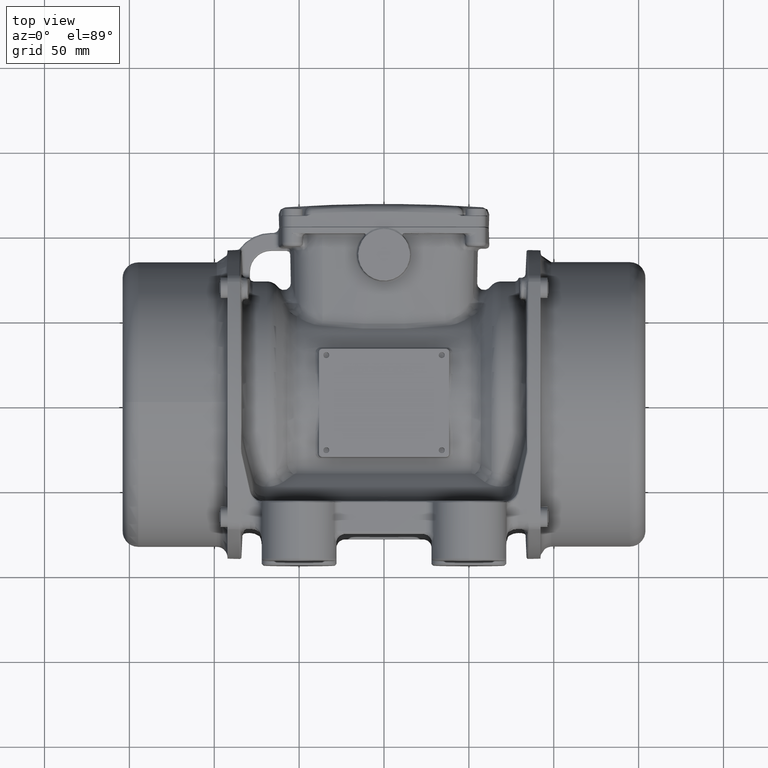
[diagram: clean part render]
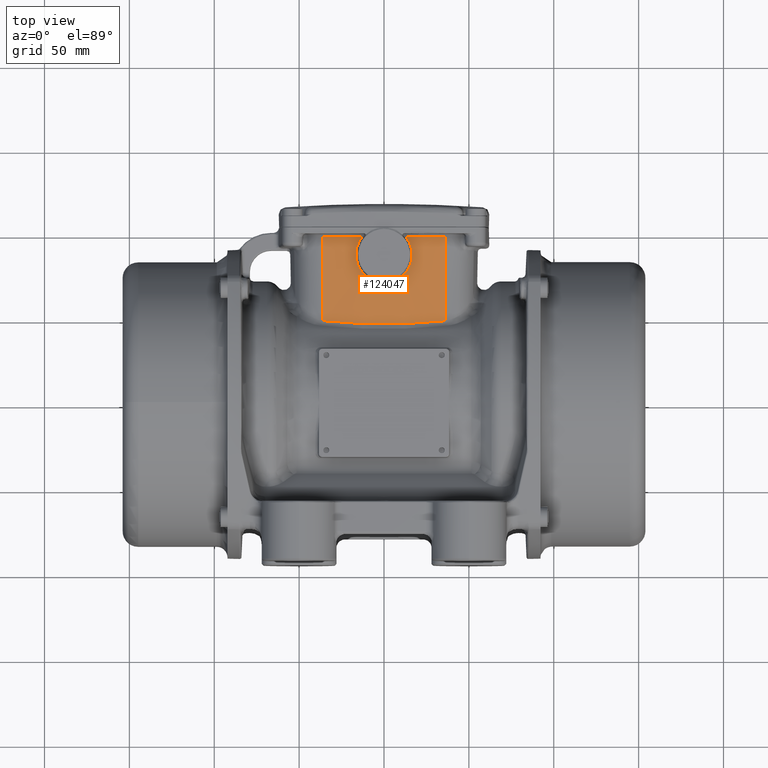
[diagram: same view with one face highlighted and labeled with its STEP entity id]
A machine part, top view. The second image highlights one B-rep face of the part: STEP entity #124047.
In plain terms, the highlighted conical surface has half-angle 1 deg.
Its self-contained STEP definition (entity closure, byte-faithful):
#973 = ORIENTED_EDGE ( 'NONE', *, *, #134168, .T. ) ;
#1358 = EDGE_LOOP ( 'NONE', ( #65695, #13372, #4994, #973, #128288, #126973 ) ) ;
#4195 = CARTESIAN_POINT ( 'NONE',  ( 36.27280846371330400, 98.03490481287460100, 40.76225481131670100 ) ) ;
#4562 = CARTESIAN_POINT ( 'NONE',  ( 10.17472140920524200, 74.38233236715667800, 42.31601640307083300 ) ) ;
#4994 = ORIENTED_EDGE ( 'NONE', *, *, #7613, .T. ) ;
#5027 = CARTESIAN_POINT ( 'NONE',  ( 1.990666772049111100, 71.01820452813392100, 42.41812930920281800 ) ) ;
#5976 = CARTESIAN_POINT ( 'NONE',  ( -2.664499273832317000, 71.11415414070917500, 42.41472458181035400 ) ) ;
#6759 = CIRCLE ( 'NONE', #36603, 309.3958788762055300 ) ;
#7403 = CARTESIAN_POINT ( 'NONE',  ( -12.87623930102094500, 77.05641679390021200, 42.26141914767774200 ) ) ;
#7613 = EDGE_CURVE ( 'NONE', #26697, #20312, #10223, .T. ) ;
#8407 = CARTESIAN_POINT ( 'NONE',  ( -36.27259896250114900, 97.93252875242699000, 40.76048015372775500 ) ) ;
#8787 = CARTESIAN_POINT ( 'NONE',  ( -20.69859936352216000, 97.94742546893651500, 42.22597279158127000 ) ) ;
#8812 = CARTESIAN_POINT ( 'NONE',  ( -15.68240846072335300, 82.15118054903247500, 42.22058824538925800 ) ) ;
#10223 = B_SPLINE_CURVE_WITH_KNOTS ( 'NONE', 3,
 ( #74011, #52998, #8787, #96839, #19722, #18777 ),
 .UNSPECIFIED., .F., .F.,
 ( 4, 2, 4 ),
 ( 0.001439304468505251100, 0.01317641225761324000, 0.02491352004672122900 ),
 .UNSPECIFIED. ) ;
#12890 = CARTESIAN_POINT ( 'NONE',  ( 36.28501536703129900, 104.0000000000000000, 40.86565790571705000 ) ) ;
#13372 = ORIENTED_EDGE ( 'NONE', *, *, #118176, .T. ) ;
#14190 = CARTESIAN_POINT ( 'NONE',  ( -30.14320839779169600, 48.05967872835511700, 40.60748586177390300 ) ) ;
#15520 = CARTESIAN_POINT ( 'NONE',  ( 13.76642390601854300, 96.78282160961099100, 42.56785145749884000 ) ) ;
#15979 = CARTESIAN_POINT ( 'NONE',  ( 1.598583187170027800, 70.97536681722648700, 42.41966293730188700 ) ) ;
#16436 = CARTESIAN_POINT ( 'NONE',  ( 0.4294444741117323100, 70.90350004078851500, 42.42224405712051500 ) ) ;
#17390 = CARTESIAN_POINT ( 'NONE',  ( 16.53381093481408800, 86.43433947494210700, 42.25101108277852500 ) ) ;
#17862 = CARTESIAN_POINT ( 'NONE',  ( -14.66248452286831300, 95.39559429636308600, 42.50272341890868700 ) ) ;
#18643 = VECTOR ( 'NONE', #106301, 1000.000000000000000 ) ;
#18777 = CARTESIAN_POINT ( 'NONE',  ( -36.27259896250114900, 97.93252875242699000, 40.76048015372775500 ) ) ;
#18803 = CARTESIAN_POINT ( 'NONE',  ( -12.88394061335526100, 97.95148341338790500, 42.62604695049385100 ) ) ;
#19280 = CARTESIAN_POINT ( 'NONE',  ( -16.03425196901350300, 83.27190283037323600, 42.22216952541308600 ) ) ;
#19722 = CARTESIAN_POINT ( 'NONE',  ( -32.38707186742143300, 97.93719865656125000, 41.21925502056483700 ) ) ;
#19746 = CARTESIAN_POINT ( 'NONE',  ( -12.62573986826157800, 76.75371432968282200, 42.26649176278686300 ) ) ;
#20312 = VERTEX_POINT ( 'NONE', #8407 ) ;
#22849 = DIRECTION ( 'NONE',  ( -1.598721155460225100E-014, 0.0000000000000000000, 1.000000000000000000 ) ) ;
#26483 = CARTESIAN_POINT ( 'NONE',  ( 14.26737492622961800, 79.03852597148326700, 42.23509963363746100 ) ) ;
#26697 = VERTEX_POINT ( 'NONE', #105858 ) ;
#27419 = CARTESIAN_POINT ( 'NONE',  ( -1.509111262298346000, 70.95319081917310200, 42.42044001745156800 ) ) ;
#30261 = CARTESIAN_POINT ( 'NONE',  ( -15.55108882851473200, 81.77948559905223600, 42.22074571680529700 ) ) ;
#35275 = DIRECTION ( 'NONE',  ( -0.002046077013791670400, -0.9998476951563912700, -0.01733205294550445300 ) ) ;
#36598 = CARTESIAN_POINT ( 'NONE',  ( 24.11456671823341200, 47.55507318326035500, 41.13014216939625100 ) ) ;
#36603 = AXIS2_PLACEMENT_3D ( 'NONE', #130514, #43831, #22849 ) ;
#37538 = CARTESIAN_POINT ( 'NONE',  ( 30.14320839779175300, 48.05967872835513100, 40.60748586177390300 ) ) ;
#37924 = CARTESIAN_POINT ( 'NONE',  ( 16.18378525081699900, 91.07293105659525200, 42.35064146313740700 ) ) ;
#38403 = CARTESIAN_POINT ( 'NONE',  ( 16.53519702347733000, 88.76387281702101000, 42.29167004247612700 ) ) ;
#39332 = CARTESIAN_POINT ( 'NONE',  ( 16.41612974737394000, 85.26291398785991800, 42.23681853330489100 ) ) ;
#39797 = CARTESIAN_POINT ( 'NONE',  ( -15.80827652100670900, 92.48814822445437800, 42.39484102477259600 ) ) ;
#40267 = CARTESIAN_POINT ( 'NONE',  ( -10.14755628733739600, 74.29020885601013900, 42.31759848078849700 ) ) ;
#41221 = CARTESIAN_POINT ( 'NONE',  ( -16.52773735270861600, 88.68005809682219400, 42.29059021274640900 ) ) ;
#41471 = LINE ( 'NONE', #12890, #104547 ) ;
#43831 = DIRECTION ( 'NONE',  ( -0.0000000000000000000, -1.000000000000000000, -0.0000000000000000000 ) ) ;
#48810 = CARTESIAN_POINT ( 'NONE',  ( 8.235966393656474000, 73.09590372164925000, 42.35096483625523700 ) ) ;
#50231 = CARTESIAN_POINT ( 'NONE',  ( 12.81627500489639900, 98.03490481287460100, 42.63031711654970500 ) ) ;
#51625 = CARTESIAN_POINT ( 'NONE',  ( -14.60828390983080600, 79.64418332260439100, 42.22962843784809900 ) ) ;
#52078 = CARTESIAN_POINT ( 'NONE',  ( -11.33057345342119900, 75.29621451681455800, 42.29290369255934200 ) ) ;
#52561 = CARTESIAN_POINT ( 'NONE',  ( -15.55646846507278100, 93.23076625138951100, 42.42060374771276100 ) ) ;
#52998 = CARTESIAN_POINT ( 'NONE',  ( -16.79294815702915100, 97.94983084333824800, 42.46309612104774100 ) ) ;
#59279 = CARTESIAN_POINT ( 'NONE',  ( 16.39371309804398500, 89.92038726036194900, 42.31941818854720300 ) ) ;
#59756 = CARTESIAN_POINT ( 'NONE',  ( 13.31326877440383800, 97.42622273232328200, 42.59907847323973600 ) ) ;
#60237 = CARTESIAN_POINT ( 'NONE',  ( 16.57542308521830800, 87.98972387731251400, 42.27596673172981000 ) ) ;
#60812 = VERTEX_POINT ( 'NONE', #97657 ) ;
#61687 = CARTESIAN_POINT ( 'NONE',  ( -16.46719570860749100, 85.55782408500610400, 42.23927362542603000 ) ) ;
#63127 = CARTESIAN_POINT ( 'NONE',  ( -16.21640496128258500, 90.98610550618329300, 42.34746736236337500 ) ) ;
#64592 = LINE ( 'NONE', #97658, #18643 ) ;
#65685 = CARTESIAN_POINT ( 'NONE',  ( -36.17185007735005100, 48.70000234754820700, 39.90704941780264600 ) ) ;
#65695 = ORIENTED_EDGE ( 'NONE', *, *, #74348, .T. ) ;
#68013 = CARTESIAN_POINT ( 'NONE',  ( 12.05728335911671900, 46.87478010383353700, 41.82630735055784000 ) ) ;
#69788 = CARTESIAN_POINT ( 'NONE',  ( 11.35656956868668400, 75.39584089989135400, 42.29251599167651700 ) ) ;
#70238 = CARTESIAN_POINT ( 'NONE',  ( 6.127365176104407700, 72.06074367213193500, 42.38255311556282800 ) ) ;
#70530 = B_SPLINE_CURVE_WITH_KNOTS ( 'NONE', 3,
 ( #50231, #59756, #15520, #126023, #124617, #136904, #103105, #135481, #37924, #71650, #59279, #38403, #60237, #82085, #17390, #135955, #39332, #114605, #114128, #91683, #26483, #115549, #81163, #135016, #69788, #4562, #125560, #80690, #48810, #136416, #102626, #70238, #81632, #125095, #71182, #5027, #15979, #92143, #16436, #92618, #27419, #5976, #116034, #83518, #126977, #94972, #94034, #40267, #52078, #19746, #7403, #74037, #72125, #84483, #51625, #138812, #83055, #30261, #8812, #19280, #95442, #61687, #83992, #84966, #106427, #41221, #117468, #128375, #63127, #104986, #39797, #52561, #139283, #17862, #117924, #18803 ),
 .UNSPECIFIED., .F., .F.,
 ( 4, 2, 2, 2, 2, 2, 2, 2, 2, 2, 2, 2, 2, 2, 2, 2, 2, 2, 2, 2, 2, 2, 2, 2, 2, 2, 2, 2, 2, 2, 2, 2, 2, 2, 2, 2, 2, 4 ),
 ( 1.734723475976807100E-018, 0.002354774637315983900, 0.004709549274631966000, 0.007064323911947947700, 0.008241711230605960200, 0.009419098549263971900, 0.01177387318657999500, 0.01295126050523798400, 0.01412864782389597200, 0.01883819709852797100, 0.02119297173584399500, 0.02354774637316001800, 0.02590252101047604100, 0.02825729564779206500, 0.02943468296645009000, 0.03061207028510810900, 0.03296684492242415300, 0.03532161955974019000, 0.03649900687839821600, 0.03767639419705623400, 0.04003116883437227900, 0.04120855615303029700, 0.04238594347168832300, 0.04709549274632039700, 0.05180504202095246500, 0.05298242933961046200, 0.05415981665826846700, 0.05651459129558442100, 0.05769197861424240500, 0.05886936593290038900, 0.06122414057021638400, 0.06357891520753239400, 0.06475630252619037100, 0.06593368984484834800, 0.06828846448216427400, 0.06946585180082222300, 0.07064323911948018600, 0.07535278839411198300 ),
 .UNSPECIFIED. ) ;
#71182 = CARTESIAN_POINT ( 'NONE',  ( 3.151997689811521000, 71.18712465693136000, 42.41213895780038000 ) ) ;
#71650 = CARTESIAN_POINT ( 'NONE',  ( 16.33297868158053500, 90.30510445798510900, 42.32936639495523700 ) ) ;
#72055 = CONICAL_SURFACE ( 'NONE', #139612, 309.5000000000000000, 0.01745329251994333700 ) ;
#72125 = CARTESIAN_POINT ( 'NONE',  ( -13.58170512555970300, 77.99628821876179100, 42.24759522004606500 ) ) ;
#74011 = CARTESIAN_POINT ( 'NONE',  ( -12.88394061335526100, 97.95148341338790500, 42.62604695049385100 ) ) ;
#74037 = CARTESIAN_POINT ( 'NONE',  ( -13.35477964383737900, 77.67850561978562500, 42.25195988281571100 ) ) ;
#74348 = EDGE_CURVE ( 'NONE', #138241, #60812, #6759, .T. ) ;
#80315 = CARTESIAN_POINT ( 'NONE',  ( 36.17185007735009300, 48.70000234754820700, 39.90704941780264600 ) ) ;
#80690 = CARTESIAN_POINT ( 'NONE',  ( 8.570918227557040600, 73.29365140132218000, 42.34528682139296800 ) ) ;
#81163 = CARTESIAN_POINT ( 'NONE',  ( 12.94750185692048900, 77.12337532245821600, 42.25994435563209400 ) ) ;
#81632 = CARTESIAN_POINT ( 'NONE',  ( 5.398499022719117400, 71.79018304947801700, 42.39149990427669200 ) ) ;
#82085 = CARTESIAN_POINT ( 'NONE',  ( 16.55441855620406200, 86.82377797336882000, 42.25671245492721100 ) ) ;
#83055 = CARTESIAN_POINT ( 'NONE',  ( -15.26496690872287100, 81.05235047411920800, 42.22231782873037500 ) ) ;
#83518 = CARTESIAN_POINT ( 'NONE',  ( -3.815793347713511500, 71.34444145851334400, 42.40666659342185300 ) ) ;
#83992 = CARTESIAN_POINT ( 'NONE',  ( -16.54063237313761200, 86.33143943303218700, 42.24884564133756700 ) ) ;
#84483 = CARTESIAN_POINT ( 'NONE',  ( -14.22640791613644500, 78.96932806591958400, 42.23578727278080400 ) ) ;
#84966 = CARTESIAN_POINT ( 'NONE',  ( -16.56871911930937100, 87.50534050388559100, 42.26785927292313300 ) ) ;
#89884 = CARTESIAN_POINT ( 'NONE',  ( 2.775557561562891400E-014, 46.52411335259911600, 42.17332289387854200 ) ) ;
#91683 = CARTESIAN_POINT ( 'NONE',  ( 14.64933137760274600, 79.72040942118523800, 42.22901519985137500 ) ) ;
#91897 = VERTEX_POINT ( 'NONE', #94451 ) ;
#92143 = CARTESIAN_POINT ( 'NONE',  ( 0.8186075612207963600, 70.91814600667578400, 42.42171564786295300 ) ) ;
#92618 = CARTESIAN_POINT ( 'NONE',  ( -0.7356209815689304100, 70.90060193957340600, 42.42234843430941300 ) ) ;
#93553 = CARTESIAN_POINT ( 'NONE',  ( -36.17185007735005100, 48.70000234754820700, 39.90704941780264600 ) ) ;
#94034 = CARTESIAN_POINT ( 'NONE',  ( -7.488451931826343600, 72.61333472190162300, 42.36423916553746900 ) ) ;
#94451 = CARTESIAN_POINT ( 'NONE',  ( 36.17185007735009300, 48.70000234754820700, 39.90704941780264600 ) ) ;
#94972 = CARTESIAN_POINT ( 'NONE',  ( -6.072837492055089800, 71.98001198558559100, 42.38503948784632800 ) ) ;
#95442 = CARTESIAN_POINT ( 'NONE',  ( -16.21400506207050500, 84.02805586263035300, 42.22593492196006100 ) ) ;
#96197 = DIRECTION ( 'NONE',  ( 0.0000000000000000000, 0.0000000000000000000, 1.000000000000000000 ) ) ;
#96839 = CARTESIAN_POINT ( 'NONE',  ( -28.49516289694978300, 97.94110951814083400, 41.60406645262347100 ) ) ;
#97657 = CARTESIAN_POINT ( 'NONE',  ( 12.81627500489639900, 98.03490481287460100, 42.63031711654970500 ) ) ;
#97658 = CARTESIAN_POINT ( 'NONE',  ( -36.28501536703120000, 104.0000000000000000, 40.86565790571705000 ) ) ;
#100262 = EDGE_CURVE ( 'NONE', #138241, #91897, #41471, .T. ) ;
#102626 = CARTESIAN_POINT ( 'NONE',  ( 7.197480462063099400, 72.54734768146325100, 42.36734844325195600 ) ) ;
#103105 = CARTESIAN_POINT ( 'NONE',  ( 15.79068260941431800, 92.58925511720144600, 42.39754943602733300 ) ) ;
#104547 = VECTOR ( 'NONE', #35275, 1000.000000000000000 ) ;
#104986 = CARTESIAN_POINT ( 'NONE',  ( -15.92039198407075100, 92.11441279403972300, 42.38254072016209100 ) ) ;
#105211 = B_SPLINE_CURVE_WITH_KNOTS ( 'NONE', 3,
 ( #65685, #14190, #134167, #112776, #89884, #68013, #36598, #37538, #80315 ),
 .UNSPECIFIED., .F., .F.,
 ( 4, 2, 1, 2, 4 ),
 ( 0.0000000000000000000, 0.01808592503867503800, 0.03617185007735007600, 0.05425777511602511400, 0.07234370015470015200 ),
 .UNSPECIFIED. ) ;
#105858 = CARTESIAN_POINT ( 'NONE',  ( -12.88394061335526100, 97.95148341338790500, 42.62604695049385100 ) ) ;
#106301 = DIRECTION ( 'NONE',  ( 0.002046077013791620100, -0.9998476951563912700, -0.01733205294550445300 ) ) ;
#106427 = CARTESIAN_POINT ( 'NONE',  ( -16.56420652228203500, 87.89951723145001900, 42.27499209316123800 ) ) ;
#112776 = CARTESIAN_POINT ( 'NONE',  ( -12.05728335911666300, 46.87478010383352300, 41.82630735055782600 ) ) ;
#114128 = CARTESIAN_POINT ( 'NONE',  ( 15.65153073342101200, 81.85273437585057400, 42.21763901955823400 ) ) ;
#114605 = CARTESIAN_POINT ( 'NONE',  ( 16.10723429922029800, 83.33516394048513100, 42.21948529058570900 ) ) ;
#115549 = CARTESIAN_POINT ( 'NONE',  ( 13.41688739425124900, 77.74091029121123600, 42.25055754960707300 ) ) ;
#116034 = CARTESIAN_POINT ( 'NONE',  ( -3.048817792114320000, 71.18153807002306600, 42.41234482400391700 ) ) ;
#117468 = CARTESIAN_POINT ( 'NONE',  ( -16.49587059120951000, 89.06792662327119100, 42.29907694076228400 ) ) ;
#117924 = CARTESIAN_POINT ( 'NONE',  ( -13.87003679656221200, 96.72770571792034400, 42.56356817855849100 ) ) ;
#118176 = EDGE_CURVE ( 'NONE', #60812, #26697, #70530, .T. ) ;
#121628 = FACE_OUTER_BOUND ( 'NONE', #1358, .T. ) ;
#124047 = ADVANCED_FACE ( 'NONE', ( #121628 ), #72055, .T. ) ;
#124617 = CARTESIAN_POINT ( 'NONE',  ( 14.92954662134119600, 94.74877231588864400, 42.47818838783611300 ) ) ;
#125095 = CARTESIAN_POINT ( 'NONE',  ( 3.910815569215917400, 71.35337249504911500, 42.40629170903142200 ) ) ;
#125560 = CARTESIAN_POINT ( 'NONE',  ( 9.552083287764435900, 73.92026282436785300, 42.32796056254232300 ) ) ;
#126023 = CARTESIAN_POINT ( 'NONE',  ( 14.57616926331680900, 95.44104364609725600, 42.50727415758849000 ) ) ;
#126973 = ORIENTED_EDGE ( 'NONE', *, *, #100262, .F. ) ;
#126977 = CARTESIAN_POINT ( 'NONE',  ( -4.197701961806815900, 71.43993661095227300, 42.40336956216095400 ) ) ;
#128007 = VERTEX_POINT ( 'NONE', #93553 ) ;
#128288 = ORIENTED_EDGE ( 'NONE', *, *, #137099, .T. ) ;
#128375 = CARTESIAN_POINT ( 'NONE',  ( -16.36016172075720800, 90.22446632361830200, 42.32652243658193200 ) ) ;
#129569 = DIRECTION ( 'NONE',  ( 0.0000000000000000000, 1.000000000000000000, 0.0000000000000000000 ) ) ;
#130514 = CARTESIAN_POINT ( 'NONE',  ( -6.527367439455389700E-014, 98.03490481287460100, -266.5000000000000000 ) ) ;
#134168 = EDGE_CURVE ( 'NONE', #20312, #128007, #64592, .T. ) ;
#134167 = CARTESIAN_POINT ( 'NONE',  ( -24.11456671823335900, 47.55507318326032600, 41.13014216939625100 ) ) ;
#135016 = CARTESIAN_POINT ( 'NONE',  ( 11.91906550547610000, 75.95181442763303900, 42.28089024271542900 ) ) ;
#135481 = CARTESIAN_POINT ( 'NONE',  ( 16.09497316948006000, 91.45699372840499600, 42.36200304330578300 ) ) ;
#135955 = CARTESIAN_POINT ( 'NONE',  ( 16.46473387157109900, 85.65384537759452100, 42.24105952081140500 ) ) ;
#136416 = CARTESIAN_POINT ( 'NONE',  ( 7.549974078173920400, 72.72306599479304600, 42.36198565603456200 ) ) ;
#136904 = CARTESIAN_POINT ( 'NONE',  ( 15.53680569363342000, 93.32287899088086600, 42.42332747749777900 ) ) ;
#137099 = EDGE_CURVE ( 'NONE', #128007, #91897, #105211, .T. ) ;
#138241 = VERTEX_POINT ( 'NONE', #4195 ) ;
#138812 = CARTESIAN_POINT ( 'NONE',  ( -15.10974754500962700, 80.69542149217663500, 42.22372807139724000 ) ) ;
#139283 = CARTESIAN_POINT ( 'NONE',  ( -15.41713636140088900, 93.59824796207375600, 42.43402231678796000 ) ) ;
#139612 = AXIS2_PLACEMENT_3D ( 'NONE', #140941, #129569, #96197 ) ;
#140941 = CARTESIAN_POINT ( 'NONE',  ( -6.527367439455389700E-014, 104.0000000000000000, -266.5000000000000000 ) ) ;